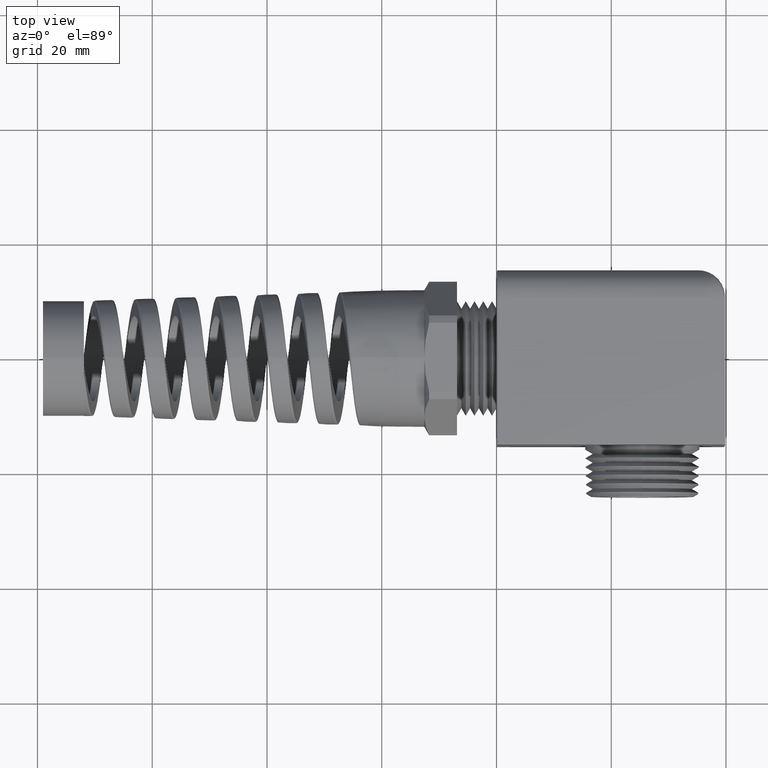
[diagram: clean part render]
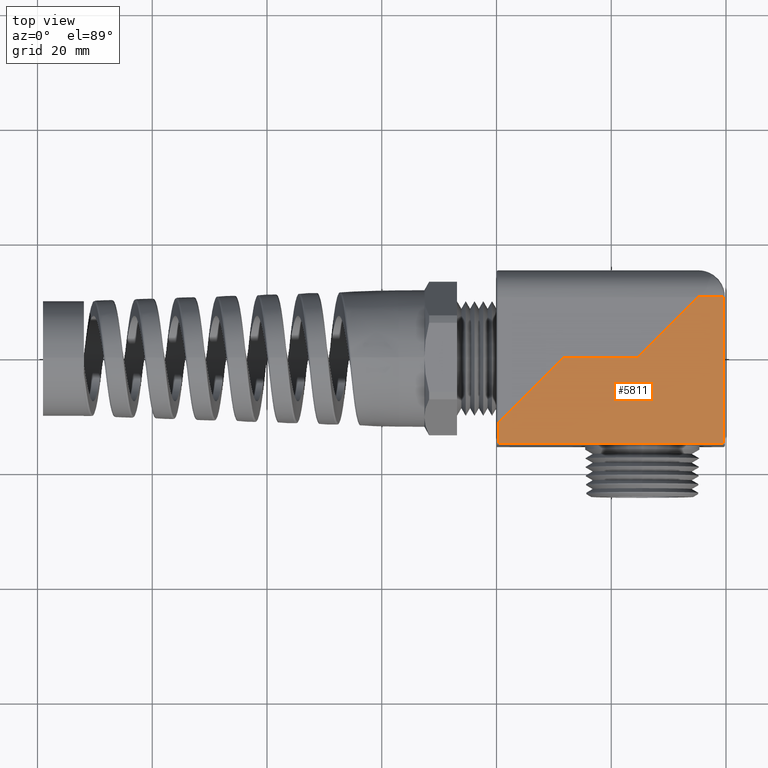
[diagram: same view with one face highlighted and labeled with its STEP entity id]
A machine part, top view. The second image highlights one B-rep face of the part: STEP entity #5811.
In plain terms, the highlighted planar face has unit normal (0, 0, -1).
Its self-contained STEP definition (entity closure, byte-faithful):
#3331 = CARTESIAN_POINT ( 'NONE',  ( 1.381333333333332900, 0.4133333333333332700, 0.4699999999999999200 ) ) ;
#3336 = DIRECTION ( 'NONE',  ( 0.7071067811865509000, 0.7071067811865441300, 0.0000000000000000000 ) ) ;
#3337 = VECTOR ( 'NONE', #3336, 39.37007874015748100 ) ;
#3338 = CARTESIAN_POINT ( 'NONE',  ( 1.218836982058541400, 0.2508369820585433200, 0.4699999999999999200 ) ) ;
#3339 = LINE ( 'NONE', #3338, #3337 ) ;
#3415 = DIRECTION ( 'NONE',  ( -1.000000000000000000, 0.0000000000000000000, 0.0000000000000000000 ) ) ;
#3416 = VECTOR ( 'NONE', #3415, 39.37007874015748100 ) ;
#3417 = CARTESIAN_POINT ( 'NONE',  ( 1.232614984114216700, 0.4133333333333332700, 0.4699999999999999200 ) ) ;
#3418 = LINE ( 'NONE', #3417, #3416 ) ;
#3457 = DIRECTION ( 'NONE',  ( -1.000000000000000000, 0.0000000000000000000, 0.0000000000000000000 ) ) ;
#3458 = DIRECTION ( 'NONE',  ( 0.0000000000000000000, 0.0000000000000000000, -1.000000000000000000 ) ) ;
#3459 = CARTESIAN_POINT ( 'NONE',  ( 1.232614984114216700, 0.2370589800028679000, 0.4699999999999999200 ) ) ;
#3460 = AXIS2_PLACEMENT_3D ( 'NONE', #3459, #3458, #3457 ) ;
#3461 = FACE_OUTER_BOUND ( 'NONE', #5812, .T. ) ;
#3466 = PLANE ( 'NONE',  #3460 ) ;
#3492 = DIRECTION ( 'NONE',  ( 1.000000000000000000, 2.319516484482452500E-017, 0.0000000000000000000 ) ) ;
#3493 = VECTOR ( 'NONE', #3492, 39.37007874015748100 ) ;
#3494 = CARTESIAN_POINT ( 'NONE',  ( 1.232614984114216700, 0.0000000000000000000, 0.4699999999999999200 ) ) ;
#3495 = LINE ( 'NONE', #3494, #3493 ) ;
#3506 = CARTESIAN_POINT ( 'NONE',  ( 0.9679999999999955300, -6.137788176939980600E-018, 0.4699999999999999200 ) ) ;
#3609 = CARTESIAN_POINT ( 'NONE',  ( 0.4639999999999954700, 0.0000000000000000000, 0.4699999999999999200 ) ) ;
#3622 = DIRECTION ( 'NONE',  ( 0.7071067811865512400, 0.7071067811865438000, 0.0000000000000000000 ) ) ;
#3623 = VECTOR ( 'NONE', #3622, 39.37007874015748100 ) ;
#3625 = CARTESIAN_POINT ( 'NONE',  ( 0.9668369820585440700, 0.5028369820585433200, 0.4699999999999999200 ) ) ;
#3634 = LINE ( 'NONE', #3625, #3623 ) ;
#3635 = CARTESIAN_POINT ( 'NONE',  ( 0.01265536723163860300, -0.4513446327683521300, 0.4699999999999999200 ) ) ;
#3738 = CARTESIAN_POINT ( 'NONE',  ( 0.01265536723163849600, -0.5873446327683619100, 0.4699999999999999200 ) ) ;
#3775 = CARTESIAN_POINT ( 'NONE',  ( 1.555344632768361800, 0.4133333333333332700, 0.4699999999999999200 ) ) ;
#3776 = DIRECTION ( 'NONE',  ( -2.276539994720219800E-016, 1.000000000000000000, 0.0000000000000000000 ) ) ;
#3777 = VECTOR ( 'NONE', #3776, 39.37007874015748100 ) ;
#3778 = CARTESIAN_POINT ( 'NONE',  ( 1.555344632768361800, 0.4133333333333333300, 0.4699999999999999200 ) ) ;
#3779 = LINE ( 'NONE', #3778, #3777 ) ;
#3781 = DIRECTION ( 'NONE',  ( 6.418815774587142800E-017, -1.000000000000000000, 0.0000000000000000000 ) ) ;
#3782 = VECTOR ( 'NONE', #3781, 39.37007874015748100 ) ;
#3784 = CARTESIAN_POINT ( 'NONE',  ( 0.01265536723163855800, 0.2370589800028678500, 0.4699999999999999200 ) ) ;
#3785 = LINE ( 'NONE', #3784, #3782 ) ;
#3852 = DIRECTION ( 'NONE',  ( 1.000000000000000000, 1.306687496969513600E-016, 0.0000000000000000000 ) ) ;
#3854 = VECTOR ( 'NONE', #3852, 39.37007874015748100 ) ;
#3855 = CARTESIAN_POINT ( 'NONE',  ( 1.568000000000000300, -0.5873446327683616900, 0.4699999999999999200 ) ) ;
#3856 = LINE ( 'NONE', #3855, #3854 ) ;
#3877 = CARTESIAN_POINT ( 'NONE',  ( 1.555344632768362000, -0.5873446327683616900, 0.4699999999999999200 ) ) ;
#5731 = EDGE_CURVE ( 'NONE', #5836, #5735, #3339, .T. ) ;
#5735 = VERTEX_POINT ( 'NONE', #3331 ) ;
#5796 = EDGE_CURVE ( 'NONE', #5977, #5735, #3418, .T. ) ;
#5811 = ADVANCED_FACE ( 'NONE', ( #3461 ), #3466, .F. ) ;
#5812 = EDGE_LOOP ( 'NONE', ( #5813, #5969, #5970, #5971, #5973, #5974, #5978 ) ) ;
#5813 = ORIENTED_EDGE ( 'NONE', *, *, #5731, .F. ) ;
#5818 = EDGE_CURVE ( 'NONE', #5878, #5836, #3495, .T. ) ;
#5836 = VERTEX_POINT ( 'NONE', #3506 ) ;
#5878 = VERTEX_POINT ( 'NONE', #3609 ) ;
#5894 = VERTEX_POINT ( 'NONE', #3635 ) ;
#5896 = EDGE_CURVE ( 'NONE', #5894, #5878, #3634, .T. ) ;
#5956 = VERTEX_POINT ( 'NONE', #3738 ) ;
#5969 = ORIENTED_EDGE ( 'NONE', *, *, #5818, .F. ) ;
#5970 = ORIENTED_EDGE ( 'NONE', *, *, #5896, .F. ) ;
#5971 = ORIENTED_EDGE ( 'NONE', *, *, #5972, .T. ) ;
#5972 = EDGE_CURVE ( 'NONE', #5894, #5956, #3785, .T. ) ;
#5973 = ORIENTED_EDGE ( 'NONE', *, *, #6013, .T. ) ;
#5974 = ORIENTED_EDGE ( 'NONE', *, *, #5975, .T. ) ;
#5975 = EDGE_CURVE ( 'NONE', #6005, #5977, #3779, .T. ) ;
#5977 = VERTEX_POINT ( 'NONE', #3775 ) ;
#5978 = ORIENTED_EDGE ( 'NONE', *, *, #5796, .T. ) ;
#6005 = VERTEX_POINT ( 'NONE', #3877 ) ;
#6013 = EDGE_CURVE ( 'NONE', #5956, #6005, #3856, .T. ) ;